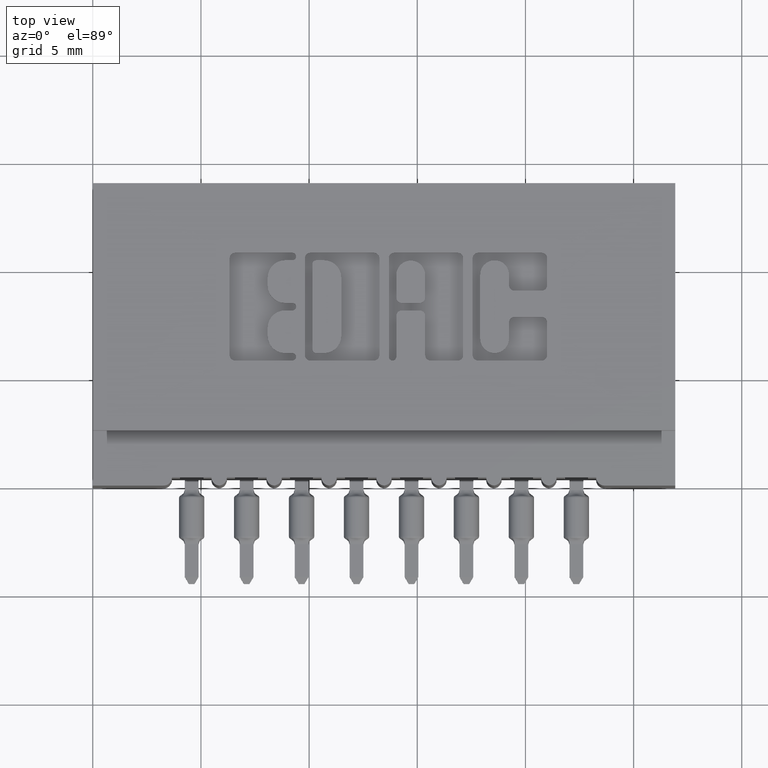
[diagram: clean part render]
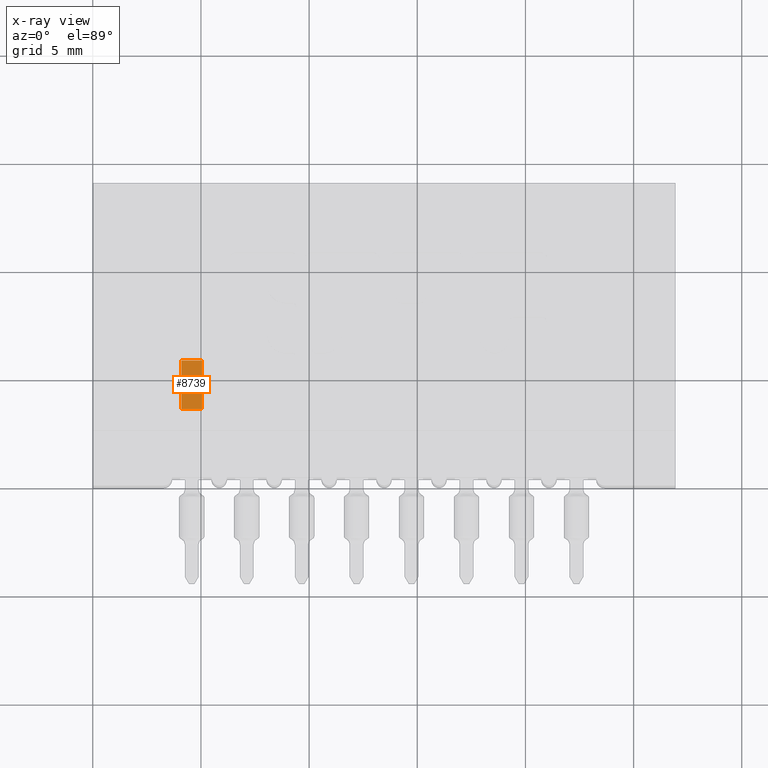
[diagram: x-ray — body ghosted, one internal face saturated and labeled with its STEP entity id]
A machine part, top view, then the same camera in x-ray: the body is ghosted and one INTERNAL B-rep face — a face not visible from any outside direction — is saturated and labeled: STEP entity #8739.
In plain terms, the highlighted planar face has unit normal (-0, 0, -1).
Its self-contained STEP definition (entity closure, byte-faithful):
#114 = EDGE_CURVE ( 'NONE', #14858, #14286, #10995, .T. ) ;
#153 = CARTESIAN_POINT ( 'NONE',  ( -0.01899999999999998900, -0.0004999999999987721500, -0.1562500000000000000 ) ) ;
#1081 = DIRECTION ( 'NONE',  ( -3.616557368246475700E-030, 0.0000000000000000000, -1.000000000000000000 ) ) ;
#1489 = EDGE_CURVE ( 'NONE', #4271, #14286, #10957, .T. ) ;
#1618 = CARTESIAN_POINT ( 'NONE',  ( -0.01899999999999998900, -0.0004999999999987721500, -0.1562500000000000000 ) ) ;
#1962 = EDGE_CURVE ( 'NONE', #9011, #14858, #2714, .T. ) ;
#2714 = LINE ( 'NONE', #1618, #9656 ) ;
#3305 = CARTESIAN_POINT ( 'NONE',  ( 0.01899999999999998900, -0.0004999999999987721500, -0.1562500000000000000 ) ) ;
#3851 = EDGE_CURVE ( 'NONE', #9011, #4271, #15448, .T. ) ;
#4271 = VERTEX_POINT ( 'NONE', #15155 ) ;
#7274 = VECTOR ( 'NONE', #15349, 39.37007874015748100 ) ;
#7384 = DIRECTION ( 'NONE',  ( -3.616557368246475700E-030, 0.0000000000000000000, -1.000000000000000000 ) ) ;
#7991 = PLANE ( 'NONE',  #13376 ) ;
#8385 = FACE_OUTER_BOUND ( 'NONE', #10452, .T. ) ;
#8739 = ADVANCED_FACE ( 'NONE', ( #8385 ), #7991, .F. ) ;
#9011 = VERTEX_POINT ( 'NONE', #153 ) ;
#9400 = DIRECTION ( 'NONE',  ( -2.662405555120915200E-030, -1.000000000000000000, 9.628742427632894000E-060 ) ) ;
#9580 = ORIENTED_EDGE ( 'NONE', *, *, #114, .T. ) ;
#9656 = VECTOR ( 'NONE', #16757, 39.37007874015748100 ) ;
#10158 = CARTESIAN_POINT ( 'NONE',  ( -0.01899999999999998900, -0.0005000000000000015300, 0.0000000000000000000 ) ) ;
#10228 = DIRECTION ( 'NONE',  ( -3.616557368246475700E-030, 0.0000000000000000000, -1.000000000000000000 ) ) ;
#10398 = CARTESIAN_POINT ( 'NONE',  ( 0.01899999999999998900, -0.0004999999999995917000, -0.2451234683868643800 ) ) ;
#10452 = EDGE_LOOP ( 'NONE', ( #9580, #13478, #15319, #15813 ) ) ;
#10716 = CARTESIAN_POINT ( 'NONE',  ( -0.01899999999999998900, -0.0005000000000000015300, 0.0000000000000000000 ) ) ;
#10957 = LINE ( 'NONE', #12610, #7274 ) ;
#10995 = LINE ( 'NONE', #16970, #17814 ) ;
#12610 = CARTESIAN_POINT ( 'NONE',  ( -0.01899999999999998900, -0.0004999999999995917000, -0.2451234683868643800 ) ) ;
#13376 = AXIS2_PLACEMENT_3D ( 'NONE', #10716, #9400, #1081 ) ;
#13478 = ORIENTED_EDGE ( 'NONE', *, *, #1489, .F. ) ;
#14286 = VERTEX_POINT ( 'NONE', #10398 ) ;
#14595 = VECTOR ( 'NONE', #10228, 39.37007874015748100 ) ;
#14858 = VERTEX_POINT ( 'NONE', #3305 ) ;
#15155 = CARTESIAN_POINT ( 'NONE',  ( -0.01899999999999998900, -0.0004999999999995917000, -0.2451234683868643800 ) ) ;
#15319 = ORIENTED_EDGE ( 'NONE', *, *, #3851, .F. ) ;
#15349 = DIRECTION ( 'NONE',  ( 1.000000000000000000, 2.662405555120915200E-030, 3.616557368246472900E-030 ) ) ;
#15448 = LINE ( 'NONE', #10158, #14595 ) ;
#15813 = ORIENTED_EDGE ( 'NONE', *, *, #1962, .T. ) ;
#16757 = DIRECTION ( 'NONE',  ( 1.000000000000000000, 2.662405555120915200E-030, 3.616557368246472900E-030 ) ) ;
#16970 = CARTESIAN_POINT ( 'NONE',  ( 0.01899999999999998900, -0.0004999999999995917000, 0.0000000000000000000 ) ) ;
#17814 = VECTOR ( 'NONE', #7384, 39.37007874015748100 ) ;